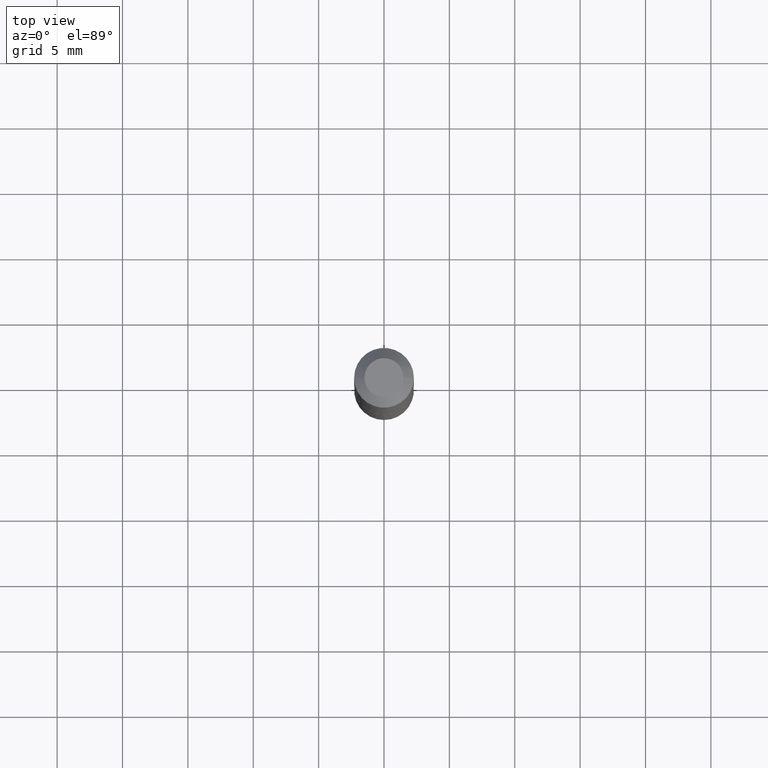
[diagram: clean part render]
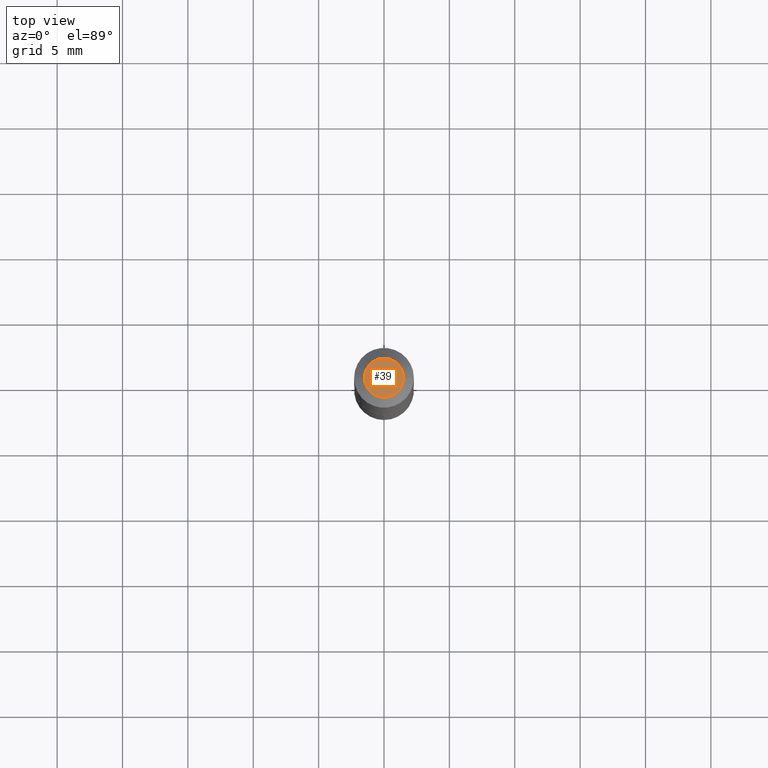
[diagram: same view with one face highlighted and labeled with its STEP entity id]
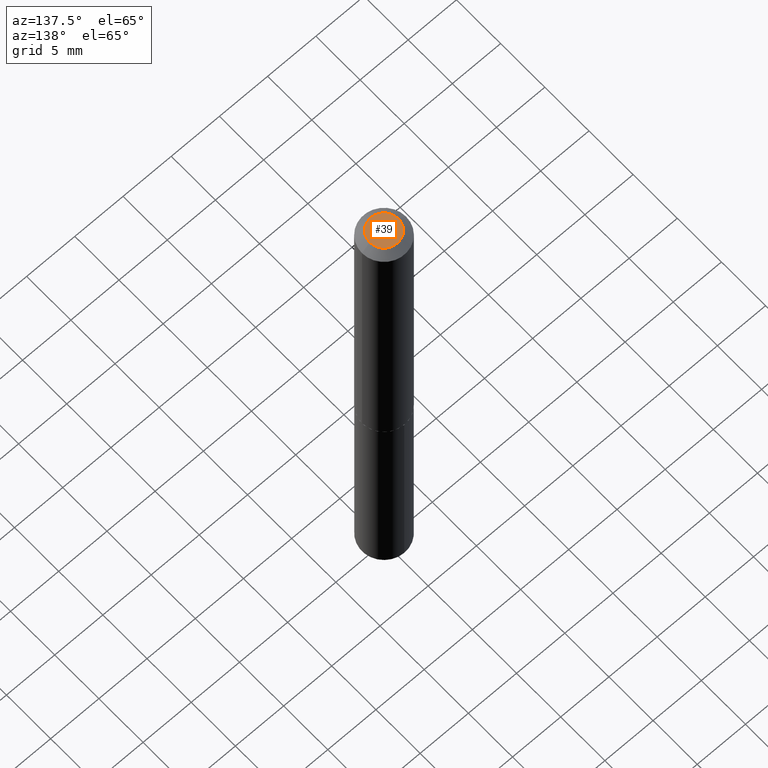
[diagram: same view with one face highlighted and labeled with its STEP entity id]
A machine part, top view. The second image highlights one B-rep face of the part: STEP entity #39.
A second angle (auxiliary view) of the same face is appended — the face is thin or edge-on in the first view.
In plain terms, the highlighted planar face has unit normal (0, -0, -1).
Its self-contained STEP definition (entity closure, byte-faithful):
#34 = EDGE_CURVE ( 'NONE', #200, #142, #222, .T. ) ;
#39 = ADVANCED_FACE ( 'NONE', ( #86 ), #356, .F. ) ;
#54 = DIRECTION ( 'NONE',  ( -2.445468806185136597E-29, 3.491481338843145583E-15, 1.000000000000000000 ) ) ;
#55 = CARTESIAN_POINT ( 'NONE',  ( -0.05874999999999999667, 4.648034532334915954E-16, -1.224646799177953522E-19 ) ) ;
#79 = DIRECTION ( 'NONE',  ( -1.000000000000000000, 6.982962677686265922E-15, -4.876176775795935793E-29 ) ) ;
#85 = DIRECTION ( 'NONE',  ( 2.438088387897960049E-29, -3.491481338843145188E-15, -1.000000000000000000 ) ) ;
#86 = FACE_OUTER_BOUND ( 'NONE', #277, .T. ) ;
#142 = VERTEX_POINT ( 'NONE', #211 ) ;
#145 = DIRECTION ( 'NONE',  ( 1.000000000000000000, -6.982962677686267499E-15, 4.876179797471253707E-29 ) ) ;
#151 = EDGE_CURVE ( 'NONE', #142, #200, #155, .T. ) ;
#155 = CIRCLE ( 'NONE', #215, 0.05874999999999999667 ) ;
#167 = ORIENTED_EDGE ( 'NONE', *, *, #151, .T. ) ;
#172 = ORIENTED_EDGE ( 'NONE', *, *, #34, .T. ) ;
#181 = DIRECTION ( 'NONE',  ( 1.000000000000000000, -6.982962677686267499E-15, 4.876179797471253707E-29 ) ) ;
#183 = CARTESIAN_POINT ( 'NONE',  ( 2.994835545909338206E-48, -4.275831445896990567E-34, -1.224646799147357958E-19 ) ) ;
#194 = AXIS2_PLACEMENT_3D ( 'NONE', #183, #384, #145 ) ;
#200 = VERTEX_POINT ( 'NONE', #55 ) ;
#211 = CARTESIAN_POINT ( 'NONE',  ( 0.05874999999999999667, -5.648039345036820564E-16, -1.224646799113270924E-19 ) ) ;
#215 = AXIS2_PLACEMENT_3D ( 'NONE', #321, #54, #181 ) ;
#222 = CIRCLE ( 'NONE', #194, 0.05874999999999999667 ) ;
#238 = AXIS2_PLACEMENT_3D ( 'NONE', #385, #85, #79 ) ;
#277 = EDGE_LOOP ( 'NONE', ( #172, #167 ) ) ;
#321 = CARTESIAN_POINT ( 'NONE',  ( 2.994835545909338206E-48, -4.275831445896990567E-34, -1.224646799147357958E-19 ) ) ;
#356 = PLANE ( 'NONE',  #238 ) ;
#384 = DIRECTION ( 'NONE',  ( -2.445468806185136597E-29, 3.491481338843145583E-15, 1.000000000000000000 ) ) ;
#385 = CARTESIAN_POINT ( 'NONE',  ( 1.497417772954669103E-48, -2.137915722948495283E-34, -6.123233995736789792E-20 ) ) ;